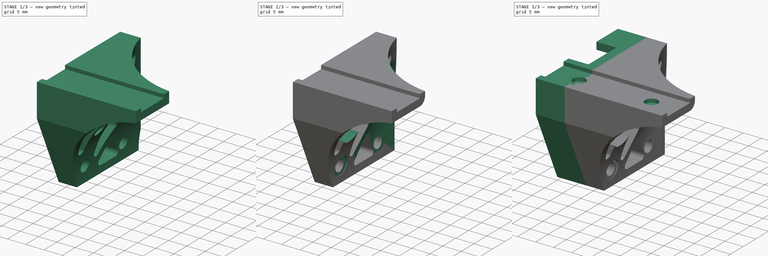
[diagram: build sequence overview — one tinted view per stage of 3, left to right]
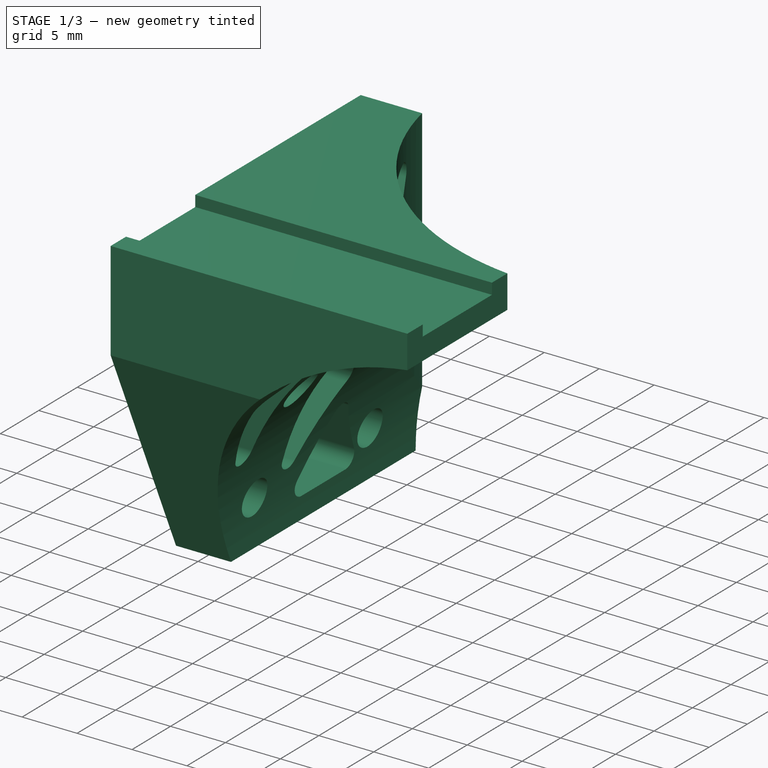
[diagram: stage 1 of 3 — iso view after this stage's code; geometry added in this stage tinted green]
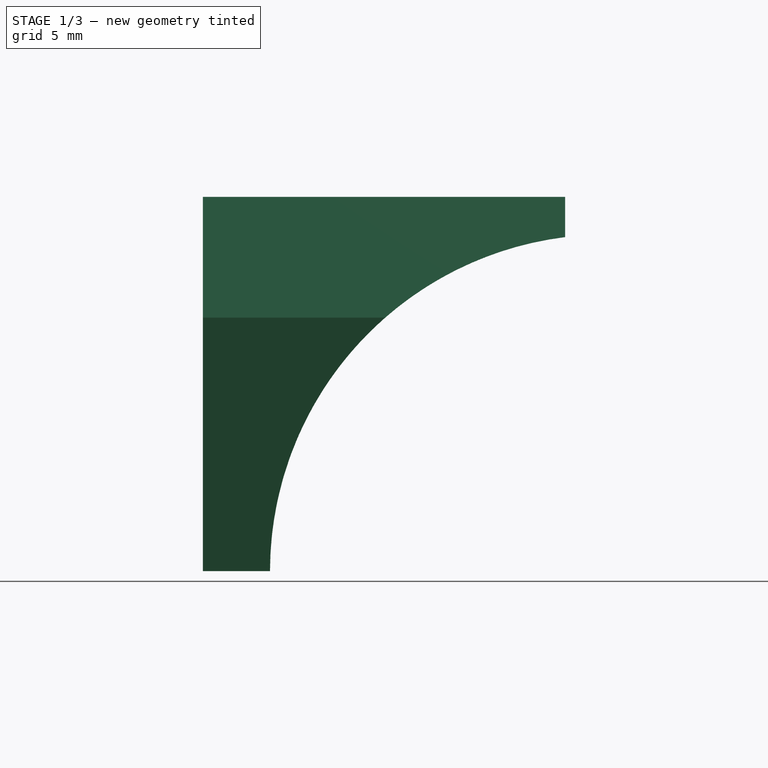
[diagram: stage 1 of 3 — front view after this stage's code; geometry added in this stage tinted green]
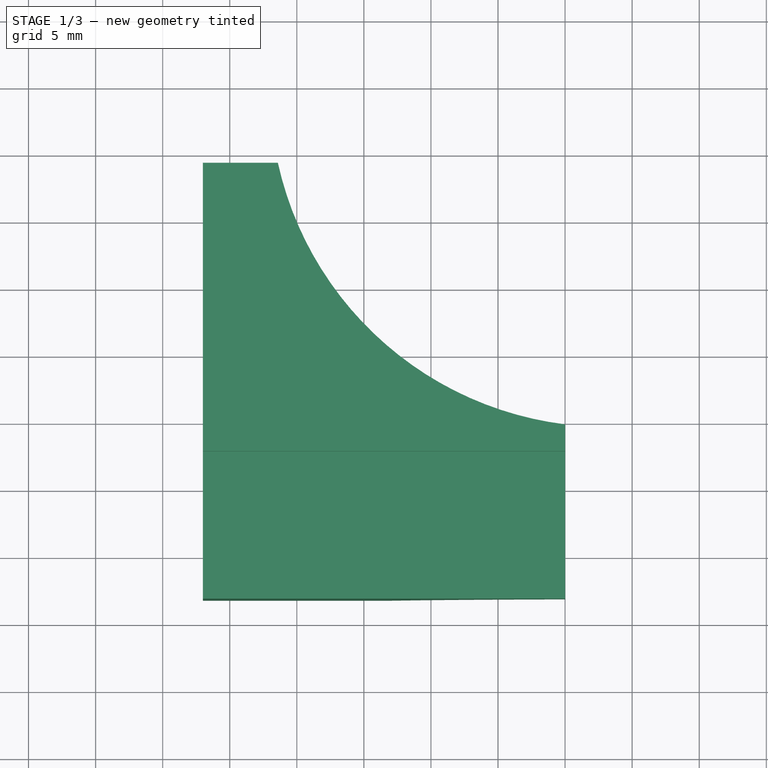
[diagram: stage 1 of 3 — top view after this stage's code; geometry added in this stage tinted green]
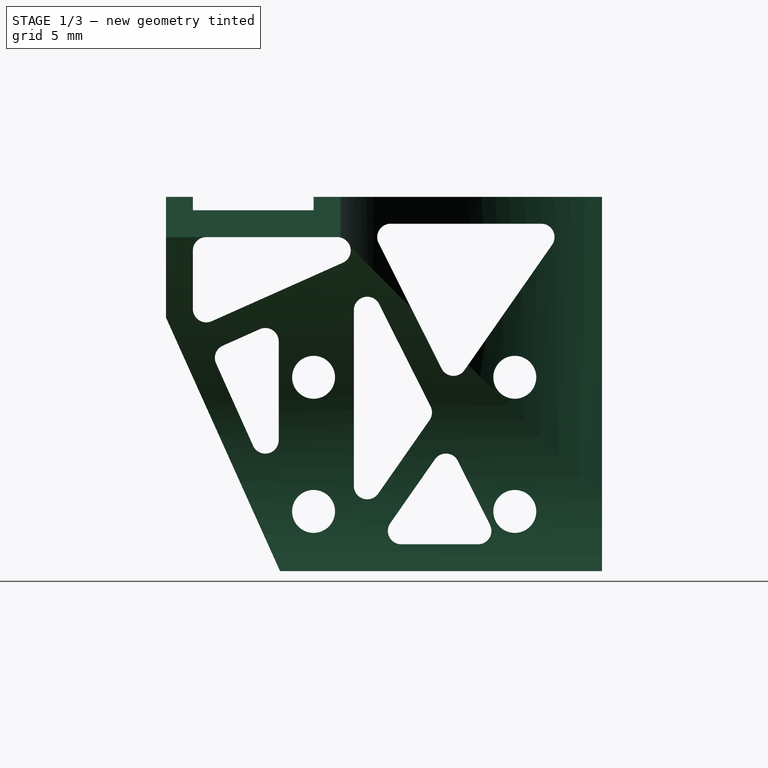
[diagram: stage 1 of 3 — right view after this stage's code; geometry added in this stage tinted green]
FCSTD DOCUMENT  (FreeCAD 0.21R33668 +26 (Git))
Label: ZY_Connector
License: All rights reserved
LicenseURL: http://en.wikipedia.org/wiki/All_rights_reserved
objects: Sketcher::SketchObject×8, PartDesign::Pocket×5, PartDesign::Pad×2, PartDesign::SubShapeBinder×1, PartDesign::Groove×1, PartDesign::Body×1
note: 26 computed .brp shape members not serialized (recipe doc carries the construction recipe); baked Part::Feature solids carry a one-line shape summary decoded from their .brp
EXTERNAL_REF file=MG/mgn9c_slide.FCStd obj=Body001
EXTERNAL_REF file=MG/Datasheet.FCStd obj=Spreadsheet
EXTERNAL_REF file=XZ_Connector.FCStd obj=Sketch002

FEATURE [PartDesign::SubShapeBinder] Binder
  BindCopyOnChange = 0
  BindMode = 0
  ClaimChildren = false
  Context = -> Body [Binder.]
  Fuse = false
  MakeFace = true
  OffsetFill = false
  OffsetIntersection = false
  OffsetJoinType = 0
  OffsetOpenResult = false
  PartialLoad = false
  Placement = pos=(0,0,0) rot=(0,1,0;1.5708rad)
  Relative = true
  Support = -> [<external MG/mgn9c_slide.FCStd>#Body001]
  _Version = 2
FEATURE [Sketcher::SketchObject] Sketch
  ExternalGeometry = -> [Binder]
  FullyConstrained = true
  MapMode = 5
  Placement = pos=(8,0,1.8e-15) rot=(0,1,0;1.5708rad)
  Support = -> [Binder]
  expr: Constraints[100] = .Constraints.Skel
  expr: Constraints[105] = .Constraints.SkelRad
  expr: Constraints[106] = .Constraints.SkelRad
  expr: Constraints[107] = .Constraints.Skel * 2
  expr: Constraints[108] = .Constraints.Skel
  expr: Constraints[109] = .Constraints.SkelRad
  expr: Constraints[114] = .Constraints.SkelRad
  expr: Constraints[115] = .Constraints.SkelRad
  expr: Constraints[120] = .Constraints.Skel
  expr: Constraints[128] = .Constraints.Skel * 2
  expr: Constraints[140] = .Constraints.Skel
  expr: Constraints[141] = .Constraints.Skel
  expr: Constraints[142] = .Constraints.Skel
  expr: Constraints[145] = .Constraints.SkelRad
  expr: Constraints[148] = .Constraints.SkelRad
  expr: Constraints[151] = .Constraints.SkelRad
  expr: Constraints[152] = .Constraints.Skel
  expr: Constraints[155] = .Constraints.Skel * 2
  expr: Constraints[157] = .Constraints.SkelRad + .Constraints.Skel * 2
  expr: Constraints[158] = .Constraints.SkelRad + .Constraints.Skel
  expr: Constraints[161] = .Constraints.Skel * 2
  expr: Constraints[163] = .Constraints.Skel
  expr: Constraints[166] = .Constraints.SkelRad
  expr: Constraints[167] = .Constraints.SkelRad
  expr: Constraints[171] = .Constraints.SkelRad
  expr: Constraints[177] = .Constraints.Skel
  expr: Constraints[25] = .Constraints.Overhang
  expr: Constraints[41] = <<Datasheet>>#<<mgn9c>>.Dim_Wr + 4
  expr: Constraints[56] = <<Datasheet>>#<<mgn9c>>.Dim_H1 / 2
  expr: Constraints[57] = <<Datasheet>>#<<mgn9c>>.Dim_Wr
  expr: Constraints[63] = .Constraints.ScrewRad
  expr: Constraints[64] = .Constraints.ScrewRad
  expr: Constraints[65] = .Constraints.ScrewRad
  expr: Constraints[85] = .Constraints.SkelRad
  expr: Constraints[86] = .Constraints.Skel
  expr: Constraints[89] = .Constraints.SkelRad
  expr: Constraints[96] = .Constraints.Skel
  expr: Constraints[98] = .Constraints.SkelRad
  expr: Constraints[99] = .Constraints.Skel
  sketch-geometry (72):
    g0: LineSegment StartX=5 StartY=20 StartZ=0 EndX=23.9 EndY=20 EndZ=0
    g1: LineSegment StartX=23.9 StartY=20 StartZ=0 EndX=23.9 EndY=0 EndZ=0
    g2: LineSegment StartX=23.9 StartY=0 StartZ=0 EndX=5 EndY=0 EndZ=0
    g3: LineSegment StartX=5 StartY=0 StartZ=0 EndX=5 EndY=20 EndZ=0
    g4: LineSegment StartX=-4 StartY=4.5 StartZ=0 EndX=5 EndY=4.5 EndZ=0
    g5: LineSegment StartX=5 StartY=4.5 StartZ=0 EndX=5 EndY=-8.5 EndZ=0
    g6: LineSegment StartX=5 StartY=-8.5 StartZ=0 EndX=-4 EndY=-8.5 EndZ=0
    g7: LineSegment StartX=-4 StartY=-8.5 StartZ=0 EndX=-4 EndY=4.5 EndZ=0
    g8: GeomPoint X=0 Y=5.5 Z=0
    g9: LineSegment StartX=-4 StartY=4.5 StartZ=0 EndX=5 EndY=4.5 EndZ=0
    g10: LineSegment StartX=5 StartY=20 StartZ=0 EndX=23.9 EndY=20 EndZ=0
    g11: LineSegment StartX=23.9 StartY=20 StartZ=0 EndX=23.9 EndY=24 EndZ=0
    g12: LineSegment StartX=23.9 StartY=24 StartZ=0 EndX=5 EndY=24 EndZ=0
    g13: LineSegment StartX=5 StartY=24 StartZ=0 EndX=5 EndY=20 EndZ=0
    g14: LineSegment StartX=5 StartY=-8.5 StartZ=0 EndX=23.9 EndY=0 EndZ=0
    g15: LineSegment StartX=5 StartY=4.5 StartZ=0 EndX=5 EndY=20 EndZ=0
    g16: LineSegment StartX=-4 StartY=2.5 StartZ=0 EndX=-3 EndY=2.5 EndZ=0
    g17: LineSegment StartX=-3 StartY=2.5 StartZ=0 EndX=-3 EndY=-6.5 EndZ=0
    g18: LineSegment StartX=-3 StartY=-6.5 StartZ=0 EndX=-4 EndY=-6.5 EndZ=0
    g19: LineSegment StartX=-4 StartY=-6.5 StartZ=0 EndX=-4 EndY=2.5 EndZ=0
    g20: LineSegment StartX=-4 StartY=2.5 StartZ=0 EndX=-4 EndY=4.5 EndZ=0
    g21: LineSegment StartX=-4 StartY=-6.5 StartZ=0 EndX=-4 EndY=-8.5 EndZ=0
    g22: GeomPoint X=-4 Y=-2 Z=0
    g23: Circle CenterX=9.45 CenterY=17.5 CenterZ=0 NormalX=0 NormalY=0 NormalZ=1 AngleXU=0 Radius=1.6
    g24: Circle CenterX=19.45 CenterY=17.5 CenterZ=0 NormalX=0 NormalY=0 NormalZ=1 AngleXU=0 Radius=1.6
    g25: Circle CenterX=9.45 CenterY=2.5 CenterZ=0 NormalX=0 NormalY=0 NormalZ=1 AngleXU=0 Radius=1.6
    g26: Circle CenterX=19.45 CenterY=2.5 CenterZ=0 NormalX=0 NormalY=0 NormalZ=1 AngleXU=0 Radius=1.6
    g27: LineSegment StartX=-4 StartY=4.5 StartZ=0 EndX=-4 EndY=24 EndZ=0
    g28: GeomPoint X=5 Y=24 Z=0
    g29: LineSegment StartX=-4 StartY=24 StartZ=0 EndX=5 EndY=24 EndZ=0
    g30: LineSegment StartX=-4 StartY=24 StartZ=0 EndX=23.9 EndY=4.5 EndZ=0
    g31: LineSegment StartX=23.9 StartY=18.5 StartZ=0 EndX=-4 EndY=4.5 EndZ=0
    g32: LineSegment StartX=-4 StartY=4.5 StartZ=0 EndX=23.9 EndY=4.5 EndZ=0
    g33: LineSegment StartX=23.9 StartY=18.5 StartZ=0 EndX=23.9 EndY=4.5 EndZ=0
    g34: LineSegment StartX=19.45 StartY=17.5 StartZ=0 EndX=23.9 EndY=20 EndZ=0
    g35: LineSegment StartX=19.45 StartY=17.5 StartZ=0 EndX=19.45 EndY=2.5 EndZ=0
    g36: ArcOfCircle CenterX=-1 CenterY=19.4631 CenterZ=0 NormalX=0 NormalY=0 NormalZ=1 AngleXU=0 Radius=1 StartAngle=0.960792 EndAngle=3.14159
    g37: LineSegment StartX=-0.427129 StartY=20.2828 StartZ=0 EndX=8.91737 EndY=13.7517 EndZ=0
    g38: LineSegment StartX=8.79299 StartY=12.0383 StartZ=0 EndX=-0.551505 EndY=7.34926 EndZ=0
    g39: LineSegment StartX=-2 StartY=8.24305 StartZ=0 EndX=-2 EndY=19.4631 EndZ=0
    g40: ArcOfCircle CenterX=8.3445 CenterY=12.932 CenterZ=0 NormalX=0 NormalY=0 NormalZ=1 AngleXU=0 Radius=1 StartAngle=5.17747 EndAngle=7.24398
    g41: ArcOfCircle CenterX=-1 CenterY=8.24305 CenterZ=0 NormalX=0 NormalY=0 NormalZ=1 AngleXU=0 Radius=1 StartAngle=3.14159 EndAngle=5.17747
    g42: LineSegment StartX=3.99658 StartY=7.39379 StartZ=0 EndX=11.6232 EndY=11.2208 EndZ=0
    g43: LineSegment StartX=12.6446 StartY=11.1466 StartZ=0 EndX=18.1201 EndY=7.31965 EndZ=0
    g44: LineSegment StartX=17.5473 StartY=5.5 StartZ=0 EndX=4.44508 EndY=5.5 EndZ=0
    g45: LineSegment StartX=20.4515 StartY=15.6507 StartZ=0 EndX=15.6876 EndY=13.2602 EndZ=0
    g46: LineSegment StartX=21.9 StartY=14.757 StartZ=0 EndX=21.9 EndY=9.03685 EndZ=0
    g47: LineSegment StartX=15.5632 StartY=11.5468 StartZ=0 EndX=20.3271 EndY=8.21721 EndZ=0
    g48: ArcOfCircle CenterX=17.5473 CenterY=6.5 CenterZ=0 NormalX=0 NormalY=0 NormalZ=1 AngleXU=0 Radius=1 StartAngle=4.71239 EndAngle=7.24398
    g49: ArcOfCircle CenterX=12.0717 CenterY=10.327 CenterZ=0 NormalX=0 NormalY=0 NormalZ=1 AngleXU=0 Radius=1 StartAngle=0.960792 EndAngle=2.03588
    g50: ArcOfCircle CenterX=4.44508 CenterY=6.5 CenterZ=0 NormalX=0 NormalY=0 NormalZ=1 AngleXU=0 Radius=1 StartAngle=2.03588 EndAngle=4.71239
    g51: ArcOfCircle CenterX=20.9 CenterY=14.757 CenterZ=0 NormalX=0 NormalY=0 NormalZ=1 AngleXU=0 Radius=1 StartAngle=9e-16 EndAngle=2.03588
    g52: ArcOfCircle CenterX=16.1361 CenterY=12.3665 CenterZ=0 NormalX=0 NormalY=0 NormalZ=1 AngleXU=0 Radius=1 StartAngle=2.03588 EndAngle=4.10239
    g53: ArcOfCircle CenterX=20.9 CenterY=9.03685 CenterZ=0 NormalX=0 NormalY=0 NormalZ=1 AngleXU=0 Radius=1 StartAngle=4.10239 EndAngle=6.28319
    g54: LineSegment StartX=-4 StartY=24 StartZ=0 EndX=-4 EndY=4.5 EndZ=0
    g55: LineSegment StartX=-2 StartY=-7.5 StartZ=0 EndX=-2 EndY=13.6654 EndZ=0
    g56: LineSegment StartX=-2 StartY=13.6654 StartZ=0 EndX=7.43812 EndY=-7.5 EndZ=0
    g57: LineSegment StartX=7.43812 StartY=-7.5 StartZ=0 EndX=-2 EndY=-7.5 EndZ=0
    g58: LineSegment StartX=0.91331 StartY=4.67676 StartZ=0 EndX=5.26975 EndY=-5.09273 EndZ=0
    g59: LineSegment StartX=4.35644 StartY=-6.5 StartZ=0 EndX=0 EndY=-6.5 EndZ=0
    g60: LineSegment StartX=-1 StartY=4.2695 StartZ=0 EndX=-1 EndY=-5.5 EndZ=0
    g61: ArcOfCircle CenterX=-1e-16 CenterY=4.2695 CenterZ=0 NormalX=0 NormalY=0 NormalZ=1 AngleXU=0 Radius=1 StartAngle=0.419458 EndAngle=3.14159
    g62: ArcOfCircle CenterX=4.35644 CenterY=-5.5 CenterZ=0 NormalX=0 NormalY=0 NormalZ=1 AngleXU=0 Radius=1 StartAngle=4.71239 EndAngle=6.70264
    g63: ArcOfCircle CenterX=-1e-16 CenterY=-5.5 CenterZ=0 NormalX=0 NormalY=0 NormalZ=1 AngleXU=0 Radius=1 StartAngle=3.14159 EndAngle=4.71239
    g64: GeomPoint X=0 Y=-6.5 Z=0
    g65: LineSegment StartX=6.77406 StartY=-0.1 StartZ=0 EndX=14.14 EndY=-0.1 EndZ=0
    g66: LineSegment StartX=5.86075 StartY=-1.50727 StartZ=0 EndX=7.0912 EndY=-4.2666 EndZ=0
    g67: LineSegment StartX=8.41467 StartY=-4.77135 StartZ=0 EndX=14.5501 EndY=-2.01201 EndZ=0
    g68: ArcOfCircle CenterX=6.77406 CenterY=-1.1 CenterZ=0 NormalX=0 NormalY=0 NormalZ=1 AngleXU=0 Radius=1 StartAngle=1.5708 EndAngle=3.56105
    g69: ArcOfCircle CenterX=14.14 CenterY=-1.1 CenterZ=0 NormalX=0 NormalY=0 NormalZ=1 AngleXU=0 Radius=1 StartAngle=5.13502 EndAngle=7.85398
    g70: ArcOfCircle CenterX=8.00451 CenterY=-3.85934 CenterZ=0 NormalX=0 NormalY=0 NormalZ=1 AngleXU=0 Radius=1 StartAngle=3.56105 EndAngle=5.13502
    g71: LineSegment StartX=5 StartY=0.9 StartZ=0 EndX=23.9 EndY=0.9 EndZ=0
  constraints (179):
    c: Coincident(g0,g1)
    c: Coincident(g1,g2)
    c: Coincident(g2,g3)
    c: Coincident(g3,g0)
    c: Horizontal(g0)
    c: Horizontal(g2)
    c: Vertical(g1)
    c: Vertical(g3)
    c: PointOnObject(g-9,g1)
    c: PointOnObject(g0,g-4)
    c: Coincident(g2,g-10)
    c: Coincident(g4,g5)
    c: Coincident(g5,g6)
    c: Coincident(g6,g7)
    c: Coincident(g7,g4)
    c: Horizontal(g4)
    c: Horizontal(g6)
    c: Vertical(g5)
    c: Vertical(g7)
    c: PointOnObject(g8,g-13)
    c: PointOnObject(g8,g-12)
    c: DistanceY(g7,g8) = 1
    c: Coincident(g9,g7)
    c: PointOnObject(g9,g3)
    c: Horizontal(g9)
    c: DistanceX(g7,g8) = 4
    c: Coincident(g10,g11)
    c: Coincident(g11,g12)
    c: Coincident(g12,g13)
    c: Coincident(g13,g10)
    c: Horizontal(g12)
    c: Vertical(g11)
    c: Vertical(g13)
    c: Coincident(g10,g0)
    c: Coincident(g10,g1)
    c: DistanceY(g13,g13) = 4  'Overhang'
    c: PointOnObject(g2,g5)
    c: Coincident(g14,g6)
    c: Coincident(g14,g1)
    c: Coincident(g15,g9)
    c: Coincident(g15,g10)
    c: DistanceY(g7,g7) = 13
    c: Coincident(g16,g17)
    c: Coincident(g17,g18)
    c: Coincident(g18,g19)
    c: Coincident(g19,g16)
    c: Horizontal(g16)
    c: Horizontal(g18)
    c: Vertical(g17)
    c: Vertical(g19)
    c: Coincident(g20,g16)
    c: Coincident(g20,g9)
    c: Coincident(g21,g18)
    c: Coincident(g21,g6)
    c: Symmetric(g6,g9,g22)
    c: Symmetric(g16,g18,g22)
    c: DistanceX(g16,g16) = 1
    c: DistanceY(g17,g17) = 9
    c: Coincident(g23,g-5)
    c: Coincident(g24,g-6)
    c: Coincident(g25,g-8)
    c: Coincident(g26,g-7)
    c: Diameter(g26) = 3.2  'ScrewRad'
    c: Diameter(g25) = 3.2
    c: Diameter(g23) = 3.2
    c: Diameter(g24) = 3.2
    c: Coincident(g27,g20)
    c: Vertical(g27)
    c: Coincident(g28,g12)
    c: Coincident(g29,g12)
    c: Horizontal(g29)
    c: Coincident(g27,g29)
    c: Coincident(g33,g32)
    c: Coincident(g34,g24)
    c: Coincident(g34,g1)
    c: Coincident(g35,g24)
    c: Coincident(g35,g26)
    c: Parallel(g37,g30)
    c: Parallel(g38,g31)
    c: Tangent(g40,g38) = 1.5708
    c: Tangent(g40,g37) = 1.5708
    c: Distance(g36,g30) = 1  'Skel'
    c: Tangent(g36,g39) = 1.5708
    c: Tangent(g37,g36) = 1.5708
    c: Radius(g36) = 1  'SkelRad'
    c: Radius(g40) = 1
    c: Distance(g38,g31) = 1
    c: Tangent(g41,g38) = 1.5708
    c: Tangent(g41,g39) = 1.5708
    c: Radius(g41) = 1
    c: Parallel(g47,g30)
    c: Parallel(g45,g31)
    c: Parallel(g33,g46)
    c: Parallel(g43,g30)
    c: Parallel(g42,g31)
    c: Tangent(g48,g43) = 1.5708
    c: Distance(g44,g32) = 1
    c: Tangent(g48,g44) = 1.5708
    c: Radius(g48) = 1
    c: Distance(g43,g30) = 1
    c: Distance(g42,g31) = 1
    c: Tangent(g49,g42) = 1.5708
    c: Tangent(g49,g43) = 1.5708
    c: Tangent(g50,g42) = 1.5708
    c: Tangent(g50,g44) = 1.5708
    c: Radius(g50) = 1
    c: Radius(g49) = 1
    c: Distance(g46,g33) = 2
    c: Distance(g45,g31) = 1
    c: Radius(g51) = 1
    c: Tangent(g51,g46) = 1.5708
    c: Tangent(g51,g45) = -1.5708
    c: Tangent(g52,g45) = -1.5708
    c: Tangent(g52,g47) = -1.5708
    c: Radius(g52) = 1
    c: Radius(g53) = 1
    c: Tangent(g53,g46) = 1.5708
    c: Tangent(g53,g47) = -1.5708
    c: Parallel(g44,g32)
    c: Coincident(g30,g32)
    c: Distance(g47,g30) = 1
    c: Coincident(g31,g33)
    c: Parallel(g32,g2)
    c: PointOnObject(g31,g1)
    c: PointOnObject(g30,g1)
    c: DistanceY(g31,g1) = 1.5
    c: Coincident(g54,g30)
    c: Coincident(g54,g31)
    c: Distance(g39,g54) = 2
    c: Parallel(g39,g54)
    c: Coincident(g27,g30)
    c: Coincident(g4,g31)
    c: Coincident(g4,g32)
    c: Vertical(g55)
    c: Coincident(g56,g55)
    c: Coincident(g57,g56)
    c: Coincident(g57,g55)
    c: Parallel(g60,g55)
    c: Parallel(g58,g56)
    c: Parallel(g59,g57)
    c: Distance(g59,g57) = 1
    c: Distance(g58,g56) = 1
    c: Distance(g60,g55) = 1
    c: Tangent(g61,g60) = -1.5708
    c: Tangent(g61,g58) = 1.5708
    c: Radius(g61) = 1
    c: Tangent(g63,g60) = -1.5708
    c: Tangent(g63,g59) = 1.5708
    c: Radius(g63) = 1
    c: Tangent(g62,g58) = 1.5708
    c: Tangent(g62,g59) = 1.5708
    c: Radius(g62) = 1
    c: Distance(g55,g17) = 1
    c: PointOnObject(g64,g63)
    c: PointOnObject(g64,g-2)
    c: Distance(g64,g6) = 2
    c: Parallel(g57,g6)
    c: Distance(g62,g14) = 3
    c: Distance(g61,g31) = 2
    c: Horizontal(g65)
    c: Parallel(g67,g14)
    c: Distance(g67,g14) = 2
    c: Parallel(g66,g56)
    c: Distance(g66,g56) = 1
    c: Tangent(g68,g66) = -1.5708
    c: Tangent(g68,g65) = 1.5708
    c: Radius(g68) = 1
    c: Radius(g70) = 1
    c: Tangent(g70,g67) = -1.5708
    c: Tangent(g70,g66) = -1.5708
    c: Tangent(g69,g65) = 1.5708
    c: Radius(g69) = 1
    c: Tangent(g69,g67) = -1.5708
    c: PointOnObject(g71,g3)
    c: PointOnObject(g71,g1)
    c: Horizontal(g71)
    c: Tangent(g71,g26)
    c: Distance(g65,g71) = 1
    c: DistanceY(g6,g27) = 32.5  'Width'
FEATURE [PartDesign::Pad] Pad
  Direction = (1,0,-2e-16)
  Length = 27
  Length2 = 10
  Placement = pos=(0,0,0) rot=(0,1,0;1.5708rad)
  Profile = -> Sketch
  ReferenceAxis = -> Sketch [N_Axis]
  Type = 0
  expr: Length = <<Datasheet>>#<<mgn9c>>.Dim_P + 2 * <<Datasheet>>#<<mgn9c>>.Dim_E - (<<Datasheet>>#<<mgn9c>>.Dim_H - <<Datasheet>>#<<mgn9c>>.Dim_H1)
FEATURE [Sketcher::SketchObject] Sketch001
  ExternalGeometry = -> [Pad]
  FullyConstrained = true
  MapMode = 5
  Placement = pos=(0,24,0) rot=(0.57735,0.57735,0.57735;4.18879rad)
  Support = -> [Pad]
  sketch-geometry (4):
    g0: LineSegment StartX=1 StartY=35 StartZ=0 EndX=-23.9 EndY=13 EndZ=0
    g1: ArcOfCircle CenterX=-23.9 CenterY=38.0911 CenterZ=0 NormalX=0 NormalY=0 NormalZ=1 AngleXU=0 Radius=25.0911 StartAngle=4.71239 EndAngle=6.15968
    g2: LineSegment StartX=-23.9 StartY=35 StartZ=0 EndX=-23.9 EndY=13 EndZ=0
    g3: LineSegment StartX=-23.9 StartY=35 StartZ=0 EndX=1 EndY=35 EndZ=0
  constraints (13):
    c: Coincident(g0,g-7)
    c: PointOnObject(g0,g-5)
    c: DistanceY(g-5,g0) = 5
    c: Coincident(g1,g0)
    c: Coincident(g1,g0)
    c: Perpendicular(g1,g-5)
    c: Coincident(g2,g-5)
    c: Coincident(g2,g1)
    c: Coincident(g3,g2)
    c: Coincident(g3,g1)
    c: Radius(g1) = 25.0911  'Radius'
    c: DistanceX(g1,g1) = 24.9  'Distance'
    c: DistanceX(g1,g-8) = 2  'TopLeave'
FEATURE [PartDesign::Pocket] Pocket
  BaseFeature = -> Pad
  Direction = (0,-1,0)
  Length = 32.5
  Length2 = 5
  Placement = pos=(0,0,0) rot=(0,1,0;1.5708rad)
  Profile = -> Sketch001
  ReferenceAxis = -> Sketch001 [N_Axis]
  Type = 0
  expr: Length = <<Sketch>>.Constraints.Width
FEATURE [Sketcher::SketchObject] Sketch002
  ExternalGeometry = -> [Pocket]
  FullyConstrained = true
  MapMode = 5
  Placement = pos=(4e-16,0,4) rot=(0,0,-1;1.5708rad)
  Support = -> [Pocket]
  expr: Constraints[1] = <<Sketch001>>.Constraints.TopLeave
  expr: Constraints[3] = <<Sketch001>>.Constraints.Radius * 2
  expr: Constraints[7] = <<Sketch001>>.Constraints.Distance
  sketch-geometry (3):
    g0: GeomPoint X=-4.5 Y=35 Z=0
    g1: Circle CenterX=-29.4 CenterY=38.0911 CenterZ=0 NormalX=0 NormalY=0 NormalZ=1 AngleXU=0 Radius=25.0911
    g2: LineSegment StartX=-29.4 StartY=13 StartZ=0 EndX=-24 EndY=13 EndZ=0
  constraints (8):
    c: PointOnObject(g0,g-3)
    c: DistanceX(g0,g-5) = 2
    c: PointOnObject(g0,g1)
    c: Diameter(g1) = 50.1823
    c: PointOnObject(g2,g-6)
    c: Horizontal(g2)
    c: Tangent(g2,g1) = -1.5708
    c: DistanceX(g2,g0) = 24.9
FEATURE [PartDesign::Pocket] Pocket001
  BaseFeature = -> Pocket
  Direction = (-9e-16,0,-1)
  Length = 100
  Length2 = 5
  Placement = pos=(0,0,0) rot=(0,1,0;1.5708rad)
  Profile = -> Sketch002
  ReferenceAxis = -> Sketch002 [N_Axis]
  Type = 0
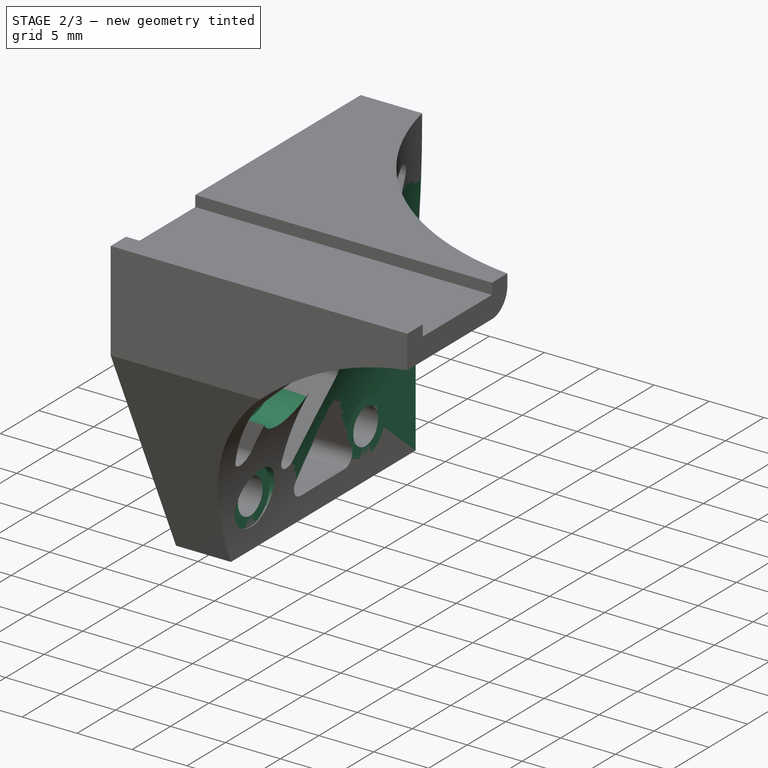
[diagram: stage 2 of 3 — iso view after this stage's code; geometry added in this stage tinted green]
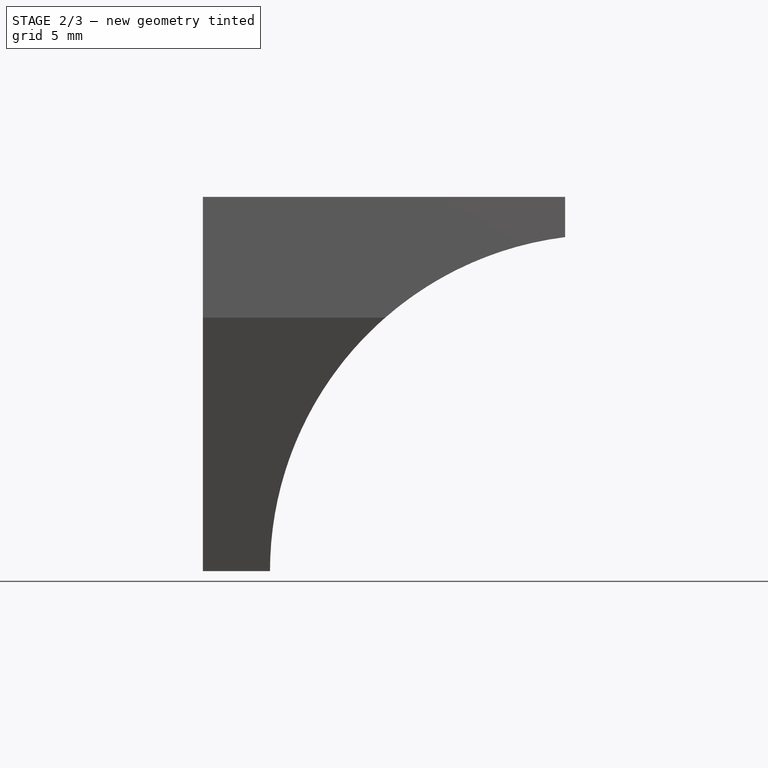
[diagram: stage 2 of 3 — front view after this stage's code; geometry added in this stage tinted green]
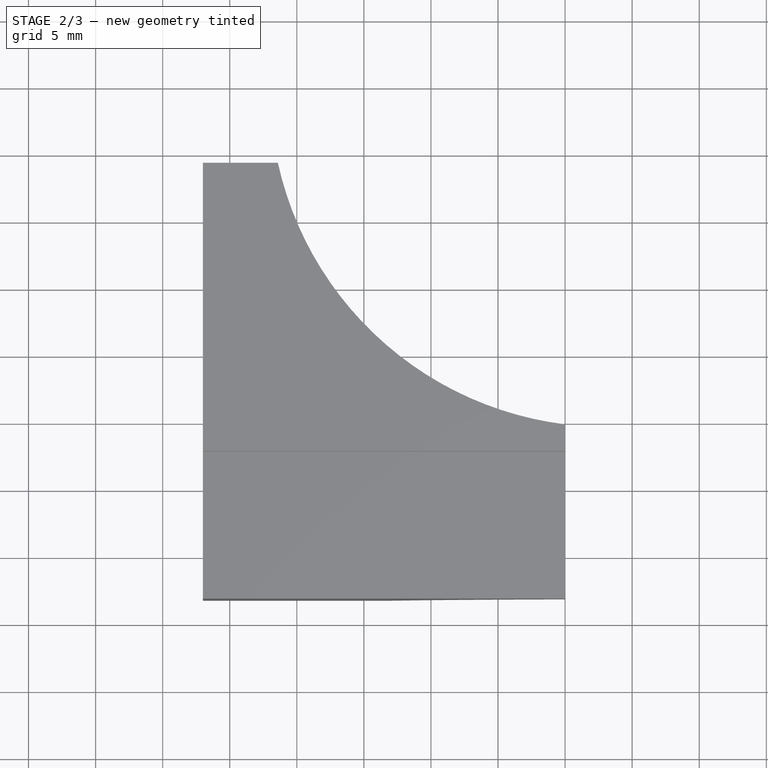
[diagram: stage 2 of 3 — top view after this stage's code; geometry added in this stage tinted green]
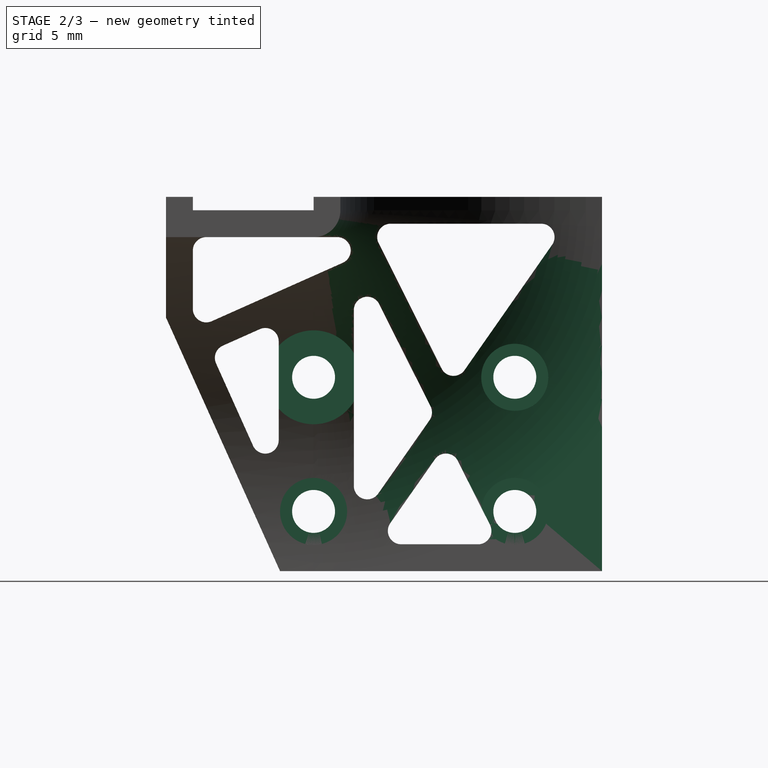
[diagram: stage 2 of 3 — right view after this stage's code; geometry added in this stage tinted green]
FEATURE [Sketcher::SketchObject] Sketch003
  ExternalGeometry = -> [Pocket001]
  FullyConstrained = true
  MapMode = 5
  Placement = pos=(3e-16,0,3) rot=(0,0,-1;1.5708rad)
  Support = -> [Pocket001]
  sketch-geometry (5):
    g0: Circle CenterX=-29.4 CenterY=38.0911 CenterZ=0 NormalX=0 NormalY=0 NormalZ=1 AngleXU=0 Radius=25.0911
    g1: ArcOfCircle CenterX=-29.4 CenterY=38.0911 CenterZ=0 NormalX=0 NormalY=0 NormalZ=1 AngleXU=0 Radius=25.0911 StartAngle=4.71239 EndAngle=6.15968
    g2: LineSegment StartX=-4.5 StartY=35 StartZ=0 EndX=-57.23 EndY=35 EndZ=0
    g3: LineSegment StartX=-57.23 StartY=35 StartZ=0 EndX=-57.23 EndY=13 EndZ=0
    g4: LineSegment StartX=-57.23 StartY=13 StartZ=0 EndX=-29.4 EndY=13 EndZ=0
  constraints (13):
    c: Coincident(g0,g-3)
    c: PointOnObject(g-3,g0)
    c: Coincident(g1,g0)
    c: Coincident(g1,g-3)
    c: DistanceX(g1,g1) = 0
    c: Coincident(g2,g3)
    c: Coincident(g3,g4)
    c: Horizontal(g2)
    c: Horizontal(g4)
    c: Vertical(g3)
    c: Coincident(g2,g1)
    c: Coincident(g4,g1)
    c: DistanceX(g4,g4) = 27.83
FEATURE [PartDesign::Groove] Groove
  Angle = 90
  Axis = (1,0,-1.2e-15)
  Base = (8,2.5,3)
  BaseFeature = -> Pocket001
  Placement = pos=(0,0,0) rot=(0,1,0;1.5708rad)
  Profile = -> Sketch003
  ReferenceAxis = -> Pocket001 [Edge100]
  Reversed = true
FEATURE [Sketcher::SketchObject] Sketch004
  ExternalGeometry = -> [Groove]
  FullyConstrained = true
  MapMode = 5
  Placement = pos=(35,0,8e-16) rot=(0,1,0;1.5708rad)
  Support = -> [Groove]
  expr: .Constraints.ScrewHead = <<XZ_Connector>>#<<Sketch002>>.Constraints.ScrewHead
  expr: Constraints[6] = .Constraints.ScrewHead
  expr: Constraints[7] = .Constraints.ScrewHead
  sketch-geometry (4):
    g0: Circle CenterX=9.45 CenterY=17.5 CenterZ=0 NormalX=0 NormalY=0 NormalZ=1 AngleXU=0 Radius=2.5
    g1: Circle CenterX=9.45 CenterY=2.5 CenterZ=0 NormalX=0 NormalY=0 NormalZ=1 AngleXU=0 Radius=3.5
    g2: Circle CenterX=19.45 CenterY=2.5 CenterZ=0 NormalX=0 NormalY=0 NormalZ=1 AngleXU=0 Radius=2.5
    g3: Circle CenterX=19.45 CenterY=17.5 CenterZ=0 NormalX=0 NormalY=0 NormalZ=1 AngleXU=0 Radius=2.5
  constraints (8):
    c: Coincident(g0,g-3)
    c: Coincident(g1,g-6)
    c: Coincident(g2,g-5)
    c: Coincident(g3,g-4)
    c: Diameter(g1) = 7
    c: Diameter(g2) = 5  'ScrewHead'
    c: Diameter(g3) = 5
    c: Diameter(g0) = 5
FEATURE [PartDesign::Pocket] Pocket002
  BaseFeature = -> Groove
  Direction = (-1,0,1.4e-15)
  Length = 22
  Length2 = 5
  Placement = pos=(0,0,0) rot=(0,1,0;1.5708rad)
  Profile = -> Sketch004
  ReferenceAxis = -> Sketch004 [N_Axis]
  Type = 0
  expr: Length = <<Datasheet>>#<<mgn9c>>.Dim_P + 2 * <<Datasheet>>#<<mgn9c>>.Dim_E - (<<Datasheet>>#<<mgn9c>>.Dim_H - <<Datasheet>>#<<mgn9c>>.Dim_H1) - 5
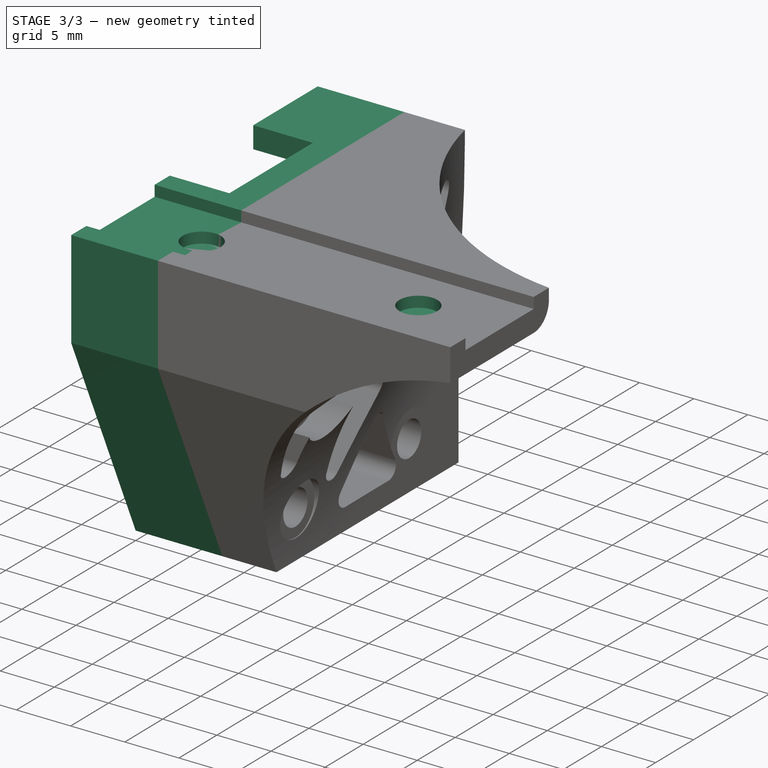
[diagram: stage 3 of 3 — iso view after this stage's code; geometry added in this stage tinted green]
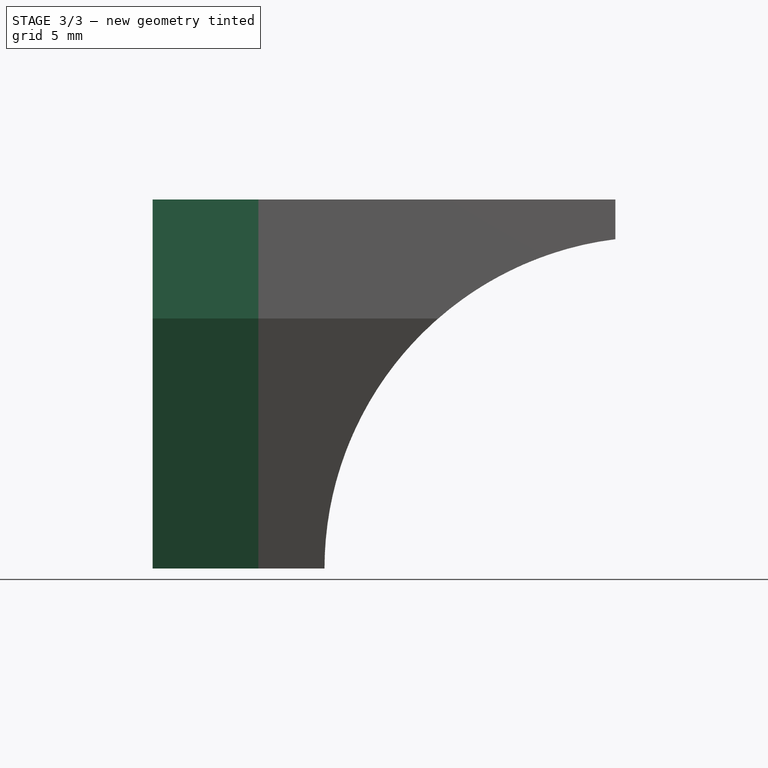
[diagram: stage 3 of 3 — front view after this stage's code; geometry added in this stage tinted green]
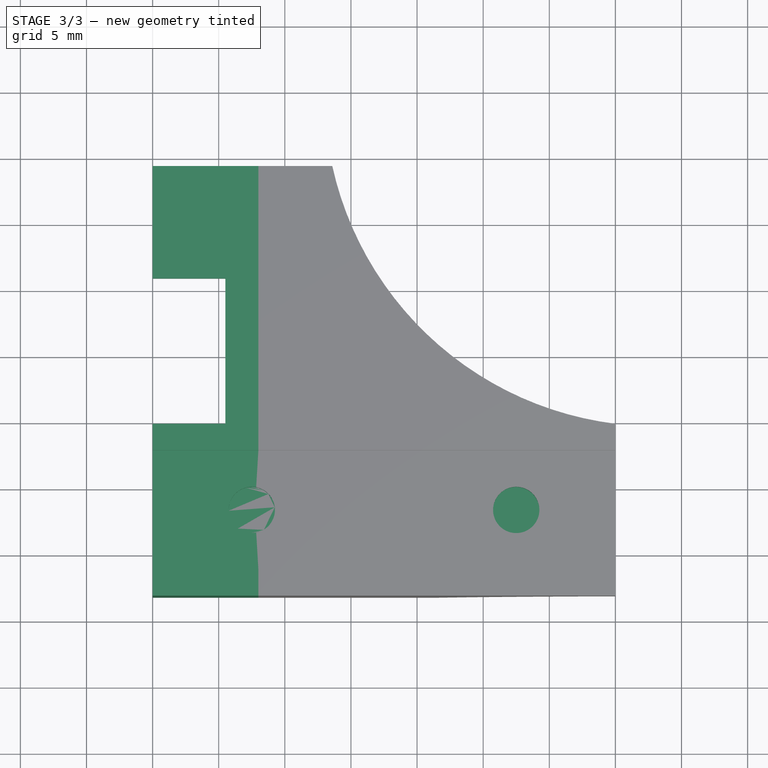
[diagram: stage 3 of 3 — top view after this stage's code; geometry added in this stage tinted green]
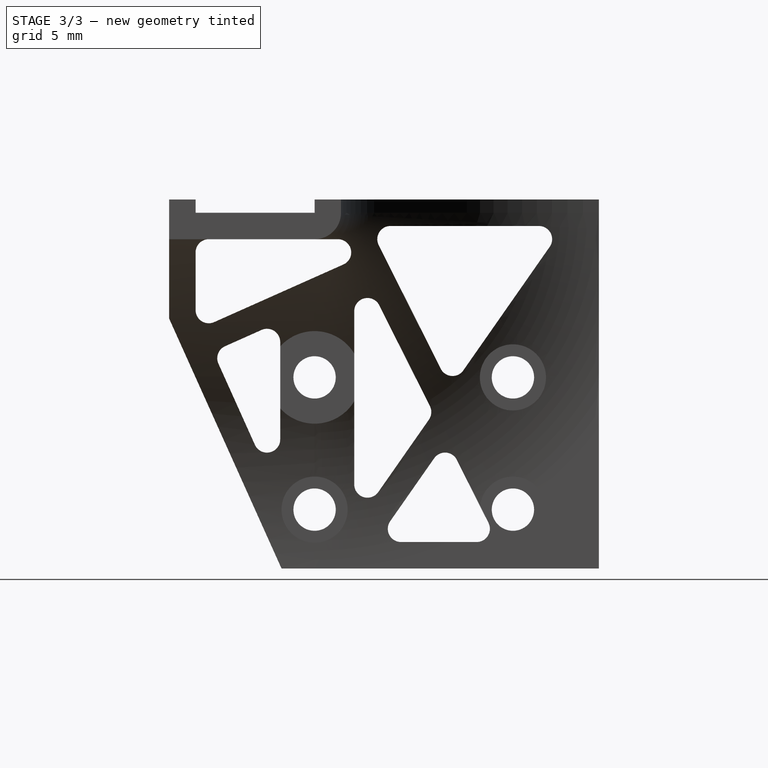
[diagram: stage 3 of 3 — right view after this stage's code; geometry added in this stage tinted green]
FEATURE [Sketcher::SketchObject] Sketch005
  ExternalGeometry = -> [Binder,Pocket002]
  FullyConstrained = true
  MapMode = 5
  Placement = pos=(8,0,2e-16) rot=(0.707107,0,-0.707107;3.14159rad)
  Support = -> [Pocket002]
  sketch-geometry (32):
    g0: LineSegment StartX=5 StartY=8.5 StartZ=0 EndX=-4 EndY=8.5 EndZ=0
    g1: LineSegment StartX=-4 StartY=6.5 StartZ=0 EndX=-4 EndY=8.5 EndZ=0
    g2: LineSegment StartX=-4 StartY=6.5 StartZ=0 EndX=-3 EndY=6.5 EndZ=0
    g3: LineSegment StartX=-3 StartY=6.5 StartZ=0 EndX=-3 EndY=-2.5 EndZ=0
    g4: LineSegment StartX=-4 StartY=-2.5 StartZ=0 EndX=-3 EndY=-2.5 EndZ=0
    g5: LineSegment StartX=-4 StartY=-2.5 StartZ=0 EndX=-4 EndY=-4.5 EndZ=0
    g6: ArcOfCircle CenterX=1e-16 CenterY=-4.2695 CenterZ=0 NormalX=0 NormalY=0 NormalZ=1 AngleXU=0 Radius=1 StartAngle=3.14159 EndAngle=4.71239
    g7: LineSegment StartX=-8.1e-15 StartY=-5.2695 StartZ=0 EndX=-7.7e-15 EndY=-7.62601 EndZ=0
    g8: ArcOfCircle CenterX=-1 CenterY=-8.24305 CenterZ=0 NormalX=0 NormalY=0 NormalZ=1 AngleXU=0 Radius=1 StartAngle=1.10572 EndAngle=3.14159
    g9: LineSegment StartX=5 StartY=8.5 StartZ=0 EndX=23.9 EndY=0 EndZ=0
    g10: LineSegment StartX=23.9 StartY=0 StartZ=0 EndX=15.14 EndY=0 EndZ=0
    g11: LineSegment StartX=15.14 StartY=1.1 StartZ=0 EndX=15.14 EndY=0 EndZ=0
    g12: ArcOfCircle CenterX=14.14 CenterY=1.1 CenterZ=0 NormalX=0 NormalY=0 NormalZ=1 AngleXU=0 Radius=1 StartAngle=1e-16 EndAngle=1.14816
    g13: LineSegment StartX=8.41467 StartY=4.77135 StartZ=0 EndX=14.5501 EndY=2.01201 EndZ=0
    g14: LineSegment StartX=7.0912 StartY=4.2666 StartZ=0 EndX=5.86075 EndY=1.50727 EndZ=0
    g15: ArcOfCircle CenterX=6.77406 CenterY=1.1 CenterZ=0 NormalX=0 NormalY=0 NormalZ=1 AngleXU=0 Radius=1 StartAngle=2.72213 EndAngle=3.14159
    g16: LineSegment StartX=5.77406 StartY=1.1 StartZ=0 EndX=5.77406 EndY=0 EndZ=0
    g17: LineSegment StartX=2.99878 StartY=0 StartZ=0 EndX=5.26975 EndY=5.09273 EndZ=0
    g18: ArcOfCircle CenterX=4.35644 CenterY=5.5 CenterZ=0 NormalX=0 NormalY=0 NormalZ=1 AngleXU=0 Radius=1 StartAngle=5.86373 EndAngle=7.85398
    g19: ArcOfCircle CenterX=1e-16 CenterY=5.5 CenterZ=0 NormalX=0 NormalY=0 NormalZ=1 AngleXU=0 Radius=1 StartAngle=1.5708 EndAngle=3.14159
    g20: LineSegment StartX=0 StartY=6.5 StartZ=0 EndX=4.35644 EndY=6.5 EndZ=0
    g21: LineSegment StartX=-1 StartY=5.5 StartZ=0 EndX=-1 EndY=-4.2695 EndZ=0
    g22: LineSegment StartX=-0.551505 StartY=-7.34926 StartZ=0 EndX=-7.7e-15 EndY=-7.62601 EndZ=0
    g23: LineSegment StartX=-4 StartY=-4.5 StartZ=0 EndX=-4 EndY=-24 EndZ=0
    g24: LineSegment StartX=-2 StartY=-8.24305 StartZ=0 EndX=-2 EndY=-19.4631 EndZ=0
    g25: ArcOfCircle CenterX=-1 CenterY=-19.4631 CenterZ=0 NormalX=0 NormalY=0 NormalZ=1 AngleXU=0 Radius=1 StartAngle=3.14159 EndAngle=5.32239
    g26: LineSegment StartX=0 StartY=-20 StartZ=0 EndX=-0.427129 EndY=-20.2828 EndZ=0
    g27: LineSegment StartX=23.9 StartY=-20 StartZ=0 EndX=0 EndY=-20 EndZ=0
    g28: LineSegment StartX=-4 StartY=-24 StartZ=0 EndX=23.9 EndY=-24 EndZ=0
    g29: LineSegment StartX=23.9 StartY=-24 StartZ=0 EndX=23.9 EndY=-20 EndZ=0
    g30: LineSegment StartX=2.99878 StartY=0 StartZ=0 EndX=5.77406 EndY=0 EndZ=0
    g31: ArcOfCircle CenterX=8.00451 CenterY=3.85934 CenterZ=0 NormalX=0 NormalY=0 NormalZ=1 AngleXU=0 Radius=1 StartAngle=1.14816 EndAngle=2.72213
  constraints (71):
    c: Coincident(g0,g-8)
    c: Coincident(g0,g-16)
    c: Coincident(g1,g-16)
    c: Coincident(g1,g0)
    c: Coincident(g2,g1)
    c: Coincident(g2,g-15)
    c: Coincident(g3,g2)
    c: Coincident(g3,g-15)
    c: Coincident(g4,g-14)
    c: Coincident(g4,g3)
    c: Coincident(g5,g4)
    c: Coincident(g5,g-14)
    c: Coincident(g6,g-18)
    c: Coincident(g6,g-18)
    c: PointOnObject(g6,g-17)
    c: Coincident(g7,g6)
    c: PointOnObject(g7,g-17)
    c: PointOnObject(g7,g-10)
    c: Coincident(g8,g-11)
    c: Coincident(g8,g-11)
    c: Coincident(g9,g0)
    c: Coincident(g9,g-8)
    c: Coincident(g10,g9)
    c: PointOnObject(g10,g-4)
    c: Coincident(g11,g10)
    c: Vertical(g11)
    c: Coincident(g12,g-7)
    c: Coincident(g12,g-7)
    c: Coincident(g13,g-24)
    c: Coincident(g13,g12)
    c: Coincident(g14,g-24)
    c: Coincident(g15,g-25)
    c: PointOnObject(g16,g-4)
    c: Vertical(g16)
    c: Tangent(g16,g15) = -1.5708
    c: PointOnObject(g17,g-5)
    c: PointOnObject(g17,g-4)
    c: Coincident(g18,g-26)
    c: Coincident(g18,g-26)
    c: Tangent(g17,g18) = -1.5708
    c: Coincident(g19,g-27)
    c: Coincident(g19,g-27)
    c: Coincident(g19,g-9)
    c: Coincident(g20,g19)
    c: Coincident(g20,g18)
    c: Coincident(g21,g19)
    c: Coincident(g21,g6)
    c: Tangent(g21,g19)
    c: Coincident(g-19,g8)
    c: Coincident(g22,g8)
    c: Coincident(g22,g7)
    c: Coincident(g23,g5)
    c: Coincident(g23,g-12)
    c: Coincident(g24,g8)
    c: Coincident(g25,g-20)
    c: Coincident(g25,g-21)
    c: Tangent(g24,g25) = -1.5708
    c: Coincident(g26,g-23)
    c: Coincident(g26,g25)
    c: Coincident(g27,g-28)
    c: Coincident(g27,g26)
    c: Coincident(g28,g23)
    c: Coincident(g28,g-29)
    c: Coincident(g29,g28)
    c: Coincident(g29,g27)
    c: Tangent(g12,g11) = 1.5708
    c: Coincident(g30,g17)
    c: Coincident(g30,g16)
    c: Tangent(g31,g13) = 1.5708
    c: Tangent(g14,g31) = -1.5708
    c: Tangent(g15,g14) = -1.5708
FEATURE [PartDesign::Pad] Pad001
  BaseFeature = -> Pocket002
  Direction = (-1,0,1.8e-15)
  Length = 8
  Length2 = 10
  Placement = pos=(0,0,0) rot=(0,1,0;1.5708rad)
  Profile = -> Sketch005
  ReferenceAxis = -> Sketch005 [N_Axis]
  Type = 0
  expr: Length = <<Datasheet>>#<<mgn9c>>.Dim_H - <<Datasheet>>#<<mgn9c>>.Dim_H1
FEATURE [Sketcher::SketchObject] Sketch006
  ExternalGeometry = -> [Pad001]
  FullyConstrained = true
  MapMode = 5
  Placement = pos=(4e-16,-1.8e-15,4) rot=(0,0,-1;1.5708rad)
  Support = -> [Pad001]
  expr: Constraints[4] = <<Datasheet>>#<<mgn9c>>.Dim_d
  expr: Constraints[7] = <<Datasheet>>#<<mgn9c>>.Dim_P
  expr: Constraints[8] = <<Datasheet>>#<<mgn9c>>.Dim_E
  sketch-geometry (3):
    g0: LineSegment StartX=2 StartY=35 StartZ=0 EndX=2 EndY=7.1e-15 EndZ=0
    g1: Circle CenterX=2 CenterY=27.5 CenterZ=0 NormalX=0 NormalY=0 NormalZ=1 AngleXU=0 Radius=1.75
    g2: Circle CenterX=2 CenterY=7.5 CenterZ=0 NormalX=0 NormalY=0 NormalZ=1 AngleXU=0 Radius=1.75
  constraints (10):
    c: PointOnObject(g0,g-4)
    c: Vertical(g0)
    c: Symmetric(g-3,g-3,g0)
    c: PointOnObject(g1,g0)
    c: Diameter(g1) = 3.5
    c: Equal(g1,g2) = 3.5
    c: PointOnObject(g2,g0)
    c: DistanceY(g2,g1) = 20
    c: DistanceY(g0,g2) = 7.5
    c: DistanceY(g1,g0) = 7.5
FEATURE [PartDesign::Pocket] Pocket003
  BaseFeature = -> Pad001
  Direction = (-2.2e-15,4e-16,-1)
  Length = 2
  Length2 = 5
  Placement = pos=(0,0,0) rot=(0,1,0;1.5708rad)
  Profile = -> Sketch006
  ReferenceAxis = -> Sketch006 [N_Axis]
  Type = 0
  expr: Length = <<Sketch001>>.Constraints.TopLeave
FEATURE [Sketcher::SketchObject] Sketch007
  ExternalGeometry = -> [Pocket003,Binder]
  FullyConstrained = true
  MapMode = 5
  Placement = pos=(6.7e-15,0,4) rot=(0,0,-1;1.5708rad)
  Support = -> [Pocket003]
  expr: Constraints[11] = 1
  expr: Constraints[9] = 1
  sketch-geometry (4):
    g0: LineSegment StartX=-15.5 StartY=-1 StartZ=0 EndX=-4.5 EndY=-1 EndZ=0
    g1: LineSegment StartX=-4.5 StartY=-1 StartZ=0 EndX=-4.5 EndY=5.5 EndZ=0
    g2: LineSegment StartX=-4.5 StartY=5.5 StartZ=0 EndX=-15.5 EndY=5.5 EndZ=0
    g3: LineSegment StartX=-15.5 StartY=5.5 StartZ=0 EndX=-15.5 EndY=-1 EndZ=0
  constraints (12):
    c: Coincident(g0,g1)
    c: Coincident(g1,g2)
    c: Coincident(g2,g3)
    c: Coincident(g3,g0)
    c: Horizontal(g0)
    c: Horizontal(g2)
    c: Vertical(g1)
    c: Vertical(g3)
    c: DistanceX(g-4,g1) = 1
    c: DistanceY(g-4,g1) = 1
    c: DistanceY(g0,g-6) = 1
    c: DistanceX(g0,g-6) = 1
FEATURE [PartDesign::Pocket] Pocket004
  BaseFeature = -> Pocket003
  Direction = (-2.4e-15,0,-1)
  Length = 5
  Length2 = 5
  Placement = pos=(0,0,0) rot=(0,1,0;1.5708rad)
  Profile = -> Sketch007
  ReferenceAxis = -> Sketch007 [N_Axis]
  Type = 0
FEATURE [PartDesign::Body] Body  label="ZY Connector"
  Group = -> [Binder,Sketch,Pad,Sketch001,Pocket,Sketch002,Pocket001,Sketch003,Groove,Sketch004,Pocket002,Sketch005,Pad001,Sketch006,Pocket003,Sketch007,Pocket004]
  Origin = -> Origin
  Tip = -> Pocket004
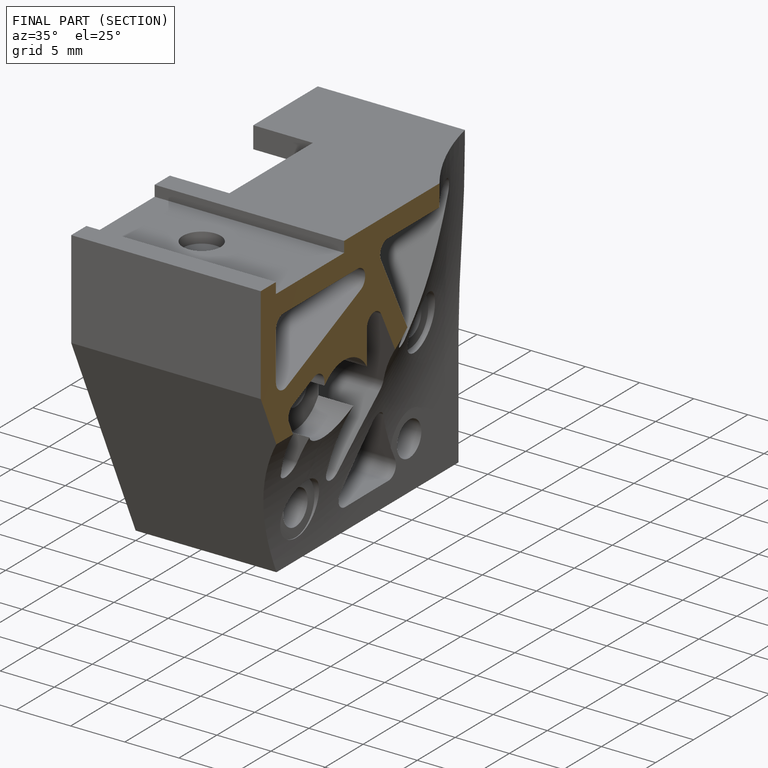
[diagram: finished part — half-section view (interior)]
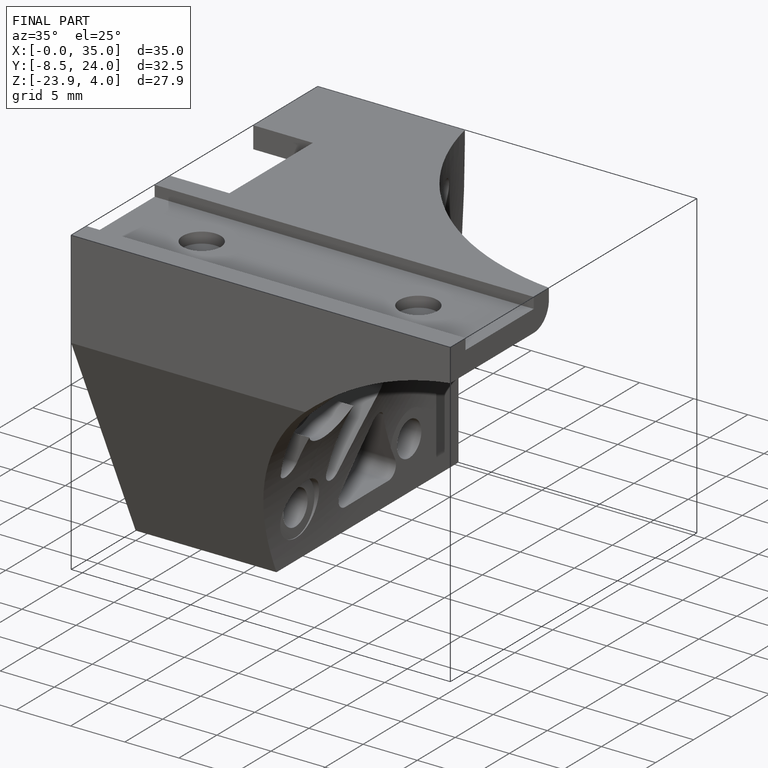
[diagram: finished part — iso view with bounding-box wireframe]
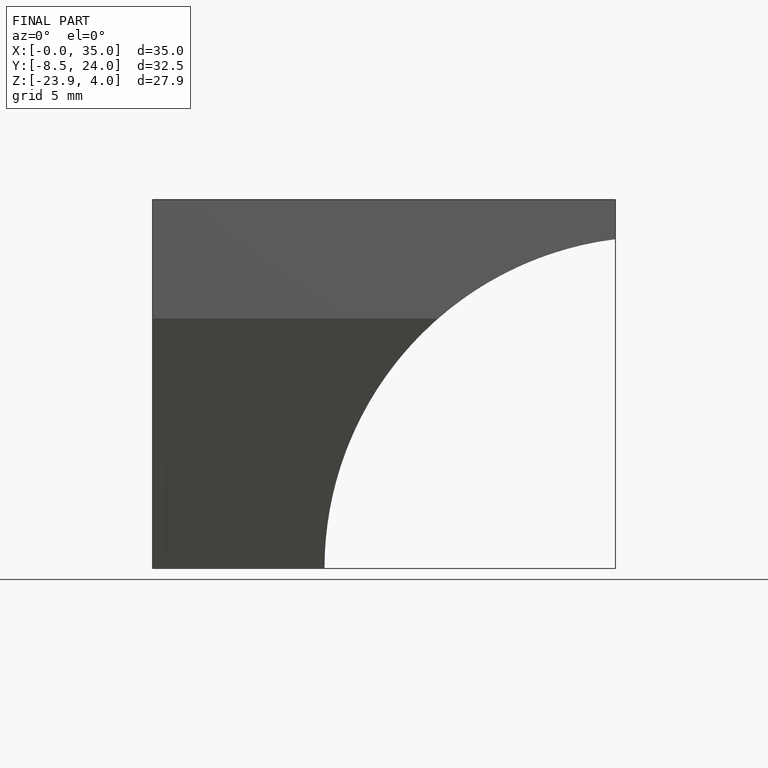
[diagram: finished part — front view with bounding-box wireframe]
